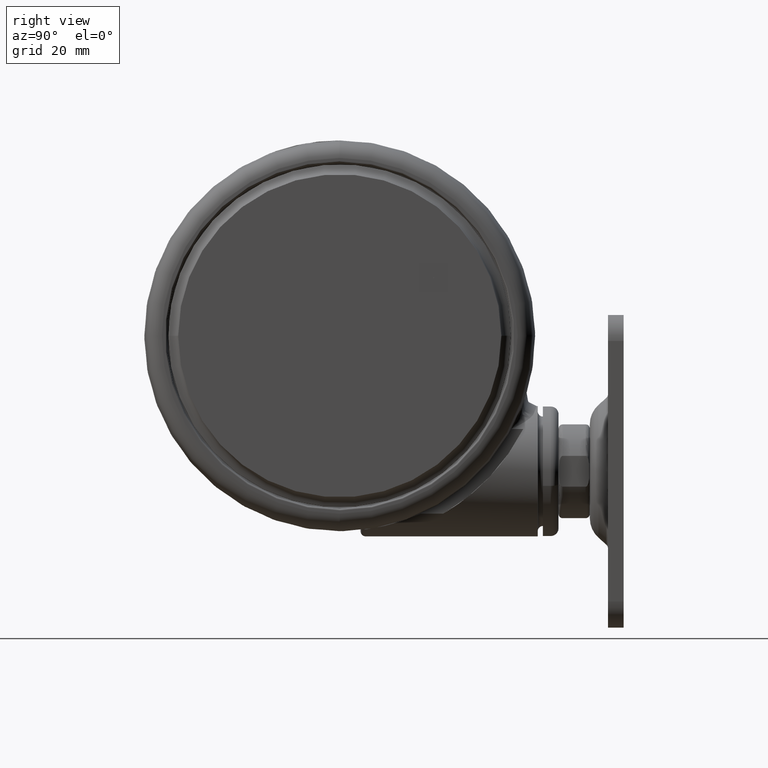
[diagram: clean part render]
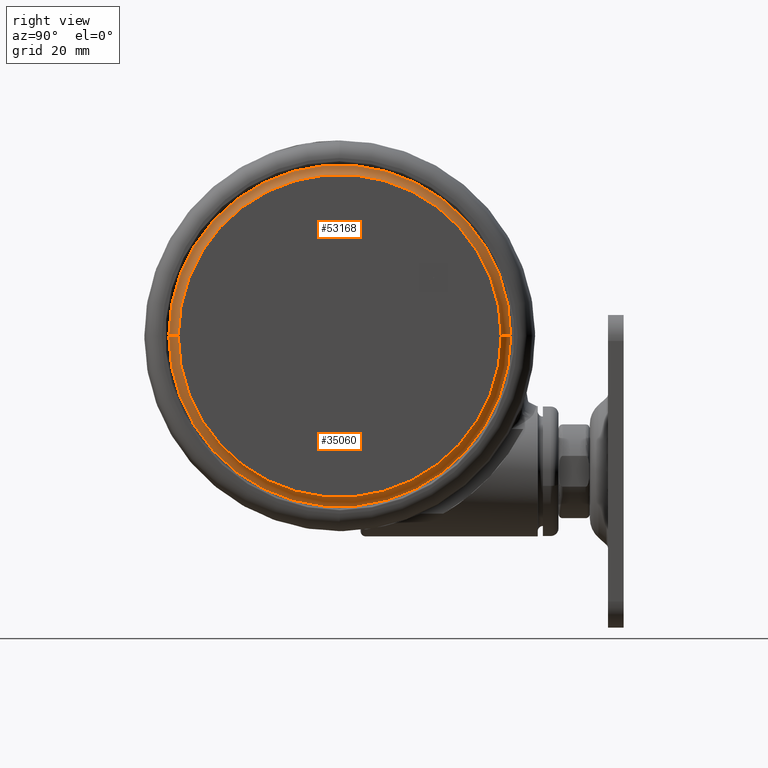
[diagram: same view with one multi-face feature highlighted, each face labeled with its STEP entity id]
A machine part, right view. The highlighted faces form ONE feature: a constant-radius fillet chain: 2 tangent blend faces with common blend radius 2.2 mm. The faces share edges in the B-rep.
Their STEP definitions:
[1] entity #53168 (Torus):
#1848 = CARTESIAN_POINT ( 'NONE',  ( 0.0000000000000000000, 0.0000000000000000000, -1.788098396446942800 ) ) ;
#3912 = CARTESIAN_POINT ( 'NONE',  ( 33.16625847233755300, 0.0000000000000000000, 0.3838283874674035500 ) ) ;
#4076 = DIRECTION ( 'NONE',  ( 0.0000000000000000000, 0.0000000000000000000, 1.000000000000000000 ) ) ;
#4614 = VERTEX_POINT ( 'NONE', #41418 ) ;
#5041 = EDGE_LOOP ( 'NONE', ( #48333, #50101, #50517, #12458 ) ) ;
#6391 = DIRECTION ( 'NONE',  ( 1.000000000000000000, 0.0000000000000000000, 0.0000000000000000000 ) ) ;
#7236 = EDGE_CURVE ( 'NONE', #12383, #32370, #34320, .T. ) ;
#8501 = DIRECTION ( 'NONE',  ( 0.0000000000000000000, 0.0000000000000000000, -1.000000000000000000 ) ) ;
#12383 = VERTEX_POINT ( 'NONE', #31621 ) ;
#12458 = ORIENTED_EDGE ( 'NONE', *, *, #18562, .F. ) ;
#17486 = AXIS2_PLACEMENT_3D ( 'NONE', #25722, #57620, #30357 ) ;
#18562 = EDGE_CURVE ( 'NONE', #4614, #21858, #52391, .T. ) ;
#19100 = CARTESIAN_POINT ( 'NONE',  ( -32.81592428142002400, 4.018791663230294400E-015, -1.788098396446942800 ) ) ;
#19414 = DIRECTION ( 'NONE',  ( 0.0000000000000000000, 0.0000000000000000000, 1.000000000000000000 ) ) ;
#21858 = VERTEX_POINT ( 'NONE', #51298 ) ;
#25722 = CARTESIAN_POINT ( 'NONE',  ( -33.16625847233755300, 4.061695227784196800E-015, 0.3838283874674035500 ) ) ;
#28343 = EDGE_CURVE ( 'NONE', #32370, #21858, #47417, .T. ) ;
#30357 = DIRECTION ( 'NONE',  ( -1.000000000000000000, 1.224646799147351500E-016, 0.0000000000000000000 ) ) ;
#31621 = CARTESIAN_POINT ( 'NONE',  ( -31.00000000000000000, 3.907598370292685700E-015, -1.301042606982605300E-015 ) ) ;
#32370 = VERTEX_POINT ( 'NONE', #19100 ) ;
#33673 = DIRECTION ( 'NONE',  ( 0.0000000000000000000, 0.0000000000000000000, 1.000000000000000000 ) ) ;
#34320 = CIRCLE ( 'NONE', #17486, 2.200000000000000600 ) ;
#35251 = AXIS2_PLACEMENT_3D ( 'NONE', #3912, #35815, #8501 ) ;
#35815 = DIRECTION ( 'NONE',  ( 0.0000000000000000000, -1.000000000000000000, 0.0000000000000000000 ) ) ;
#35987 = DIRECTION ( 'NONE',  ( 1.000000000000000000, 0.0000000000000000000, 0.0000000000000000000 ) ) ;
#38776 = AXIS2_PLACEMENT_3D ( 'NONE', #1848, #33673, #6391 ) ;
#40367 = CARTESIAN_POINT ( 'NONE',  ( 0.0000000000000000000, 0.0000000000000000000, 0.3838283874674035500 ) ) ;
#40473 = AXIS2_PLACEMENT_3D ( 'NONE', #46768, #19414, #51324 ) ;
#41418 = CARTESIAN_POINT ( 'NONE',  ( 31.00000000000000000, 0.0000000000000000000, -1.301042606982605300E-015 ) ) ;
#46768 = CARTESIAN_POINT ( 'NONE',  ( 0.0000000000000000000, 0.0000000000000000000, -1.301042606982605300E-015 ) ) ;
#47417 = CIRCLE ( 'NONE', #38776, 32.81592428140525200 ) ;
#48333 = ORIENTED_EDGE ( 'NONE', *, *, #54407, .F. ) ;
#48360 = CIRCLE ( 'NONE', #40473, 31.00000000000000000 ) ;
#48361 = AXIS2_PLACEMENT_3D ( 'NONE', #40367, #4076, #35987 ) ;
#50101 = ORIENTED_EDGE ( 'NONE', *, *, #7236, .T. ) ;
#50517 = ORIENTED_EDGE ( 'NONE', *, *, #28343, .T. ) ;
#50650 = TOROIDAL_SURFACE ( 'NONE', #48361, 33.16625847233755300, 2.200000000000000200 ) ;
#51298 = CARTESIAN_POINT ( 'NONE',  ( 32.81592428142002400, 0.0000000000000000000, -1.788098396446942800 ) ) ;
#51324 = DIRECTION ( 'NONE',  ( 1.000000000000000000, 0.0000000000000000000, 0.0000000000000000000 ) ) ;
#52391 = CIRCLE ( 'NONE', #35251, 2.200000000000000200 ) ;
#53168 = ADVANCED_FACE ( 'NONE', ( #57027 ), #50650, .F. ) ;
#54407 = EDGE_CURVE ( 'NONE', #12383, #4614, #48360, .T. ) ;
#57027 = FACE_OUTER_BOUND ( 'NONE', #5041, .T. ) ;
#57620 = DIRECTION ( 'NONE',  ( 1.224646799147353200E-016, 1.000000000000000000, -0.0000000000000000000 ) ) ;
[2] entity #35060 (Torus):
#3912 = CARTESIAN_POINT ( 'NONE',  ( 33.16625847233755300, 0.0000000000000000000, 0.3838283874674035500 ) ) ;
#4448 = EDGE_CURVE ( 'NONE', #4614, #12383, #53751, .T. ) ;
#4614 = VERTEX_POINT ( 'NONE', #41418 ) ;
#7236 = EDGE_CURVE ( 'NONE', #12383, #32370, #34320, .T. ) ;
#8501 = DIRECTION ( 'NONE',  ( 0.0000000000000000000, 0.0000000000000000000, -1.000000000000000000 ) ) ;
#9644 = AXIS2_PLACEMENT_3D ( 'NONE', #22133, #53997, #26711 ) ;
#12383 = VERTEX_POINT ( 'NONE', #31621 ) ;
#13590 = DIRECTION ( 'NONE',  ( 1.000000000000000000, 0.0000000000000000000, 0.0000000000000000000 ) ) ;
#16544 = ORIENTED_EDGE ( 'NONE', *, *, #4448, .F. ) ;
#17486 = AXIS2_PLACEMENT_3D ( 'NONE', #25722, #57620, #30357 ) ;
#18562 = EDGE_CURVE ( 'NONE', #4614, #21858, #52391, .T. ) ;
#19100 = CARTESIAN_POINT ( 'NONE',  ( -32.81592428142002400, 4.018791663230294400E-015, -1.788098396446942800 ) ) ;
#21858 = VERTEX_POINT ( 'NONE', #51298 ) ;
#22133 = CARTESIAN_POINT ( 'NONE',  ( 0.0000000000000000000, 0.0000000000000000000, -1.788098396446942800 ) ) ;
#25722 = CARTESIAN_POINT ( 'NONE',  ( -33.16625847233755300, 4.061695227784196800E-015, 0.3838283874674035500 ) ) ;
#26421 = CARTESIAN_POINT ( 'NONE',  ( 0.0000000000000000000, 0.0000000000000000000, -1.301042606982605300E-015 ) ) ;
#26711 = DIRECTION ( 'NONE',  ( 1.000000000000000000, 0.0000000000000000000, 0.0000000000000000000 ) ) ;
#30357 = DIRECTION ( 'NONE',  ( -1.000000000000000000, 1.224646799147351500E-016, 0.0000000000000000000 ) ) ;
#31042 = DIRECTION ( 'NONE',  ( 1.000000000000000000, 0.0000000000000000000, 0.0000000000000000000 ) ) ;
#31621 = CARTESIAN_POINT ( 'NONE',  ( -31.00000000000000000, 3.907598370292685700E-015, -1.301042606982605300E-015 ) ) ;
#31923 = EDGE_LOOP ( 'NONE', ( #48357, #16544, #58624, #53237 ) ) ;
#32370 = VERTEX_POINT ( 'NONE', #19100 ) ;
#33783 = TOROIDAL_SURFACE ( 'NONE', #49732, 33.16625847233755300, 2.200000000000000200 ) ;
#34320 = CIRCLE ( 'NONE', #17486, 2.200000000000000600 ) ;
#35060 = ADVANCED_FACE ( 'NONE', ( #45908 ), #33783, .F. ) ;
#35251 = AXIS2_PLACEMENT_3D ( 'NONE', #3912, #35815, #8501 ) ;
#35815 = DIRECTION ( 'NONE',  ( 0.0000000000000000000, -1.000000000000000000, 0.0000000000000000000 ) ) ;
#39508 = AXIS2_PLACEMENT_3D ( 'NONE', #26421, #58309, #31042 ) ;
#39597 = CIRCLE ( 'NONE', #9644, 32.81592428140525200 ) ;
#41418 = CARTESIAN_POINT ( 'NONE',  ( 31.00000000000000000, 0.0000000000000000000, -1.301042606982605300E-015 ) ) ;
#45908 = FACE_OUTER_BOUND ( 'NONE', #31923, .T. ) ;
#48357 = ORIENTED_EDGE ( 'NONE', *, *, #7236, .F. ) ;
#49032 = EDGE_CURVE ( 'NONE', #21858, #32370, #39597, .T. ) ;
#49732 = AXIS2_PLACEMENT_3D ( 'NONE', #54377, #58977, #13590 ) ;
#51298 = CARTESIAN_POINT ( 'NONE',  ( 32.81592428142002400, 0.0000000000000000000, -1.788098396446942800 ) ) ;
#52391 = CIRCLE ( 'NONE', #35251, 2.200000000000000200 ) ;
#53237 = ORIENTED_EDGE ( 'NONE', *, *, #49032, .T. ) ;
#53751 = CIRCLE ( 'NONE', #39508, 31.00000000000000000 ) ;
#53997 = DIRECTION ( 'NONE',  ( 0.0000000000000000000, 0.0000000000000000000, 1.000000000000000000 ) ) ;
#54377 = CARTESIAN_POINT ( 'NONE',  ( 0.0000000000000000000, 0.0000000000000000000, 0.3838283874674035500 ) ) ;
#57620 = DIRECTION ( 'NONE',  ( 1.224646799147353200E-016, 1.000000000000000000, -0.0000000000000000000 ) ) ;
#58309 = DIRECTION ( 'NONE',  ( 0.0000000000000000000, 0.0000000000000000000, 1.000000000000000000 ) ) ;
#58624 = ORIENTED_EDGE ( 'NONE', *, *, #18562, .T. ) ;
#58977 = DIRECTION ( 'NONE',  ( 0.0000000000000000000, 0.0000000000000000000, 1.000000000000000000 ) ) ;